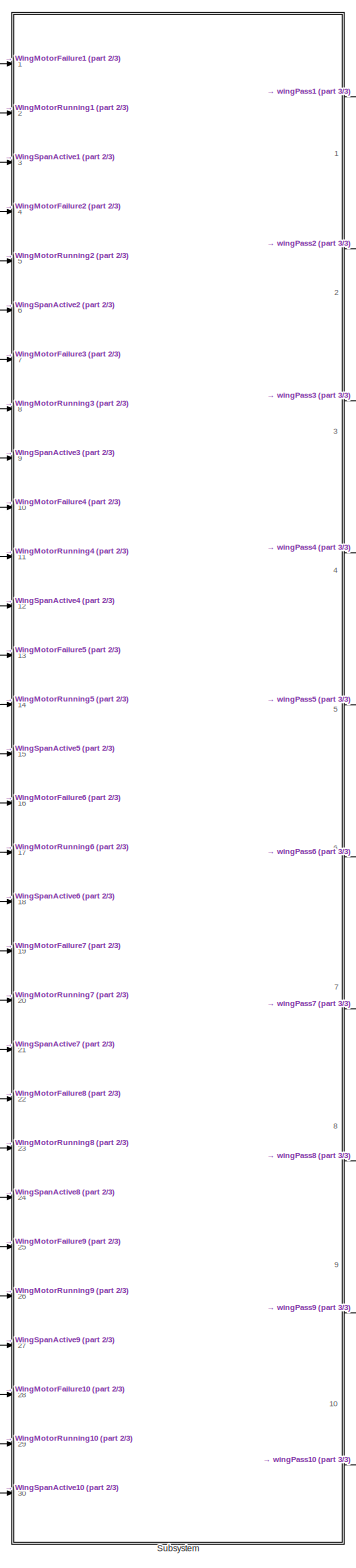
[diagram: root canvas - part 1/3, center side, full height]
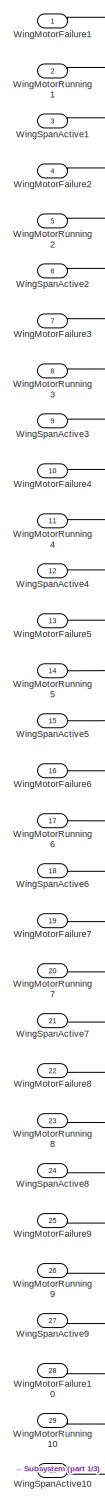
[diagram: root canvas - part 2/3, left side, full height]
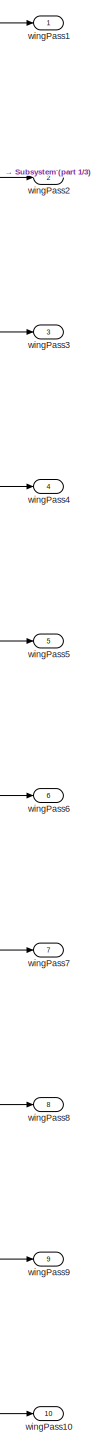
[diagram: root canvas - part 3/3, right side, full height]
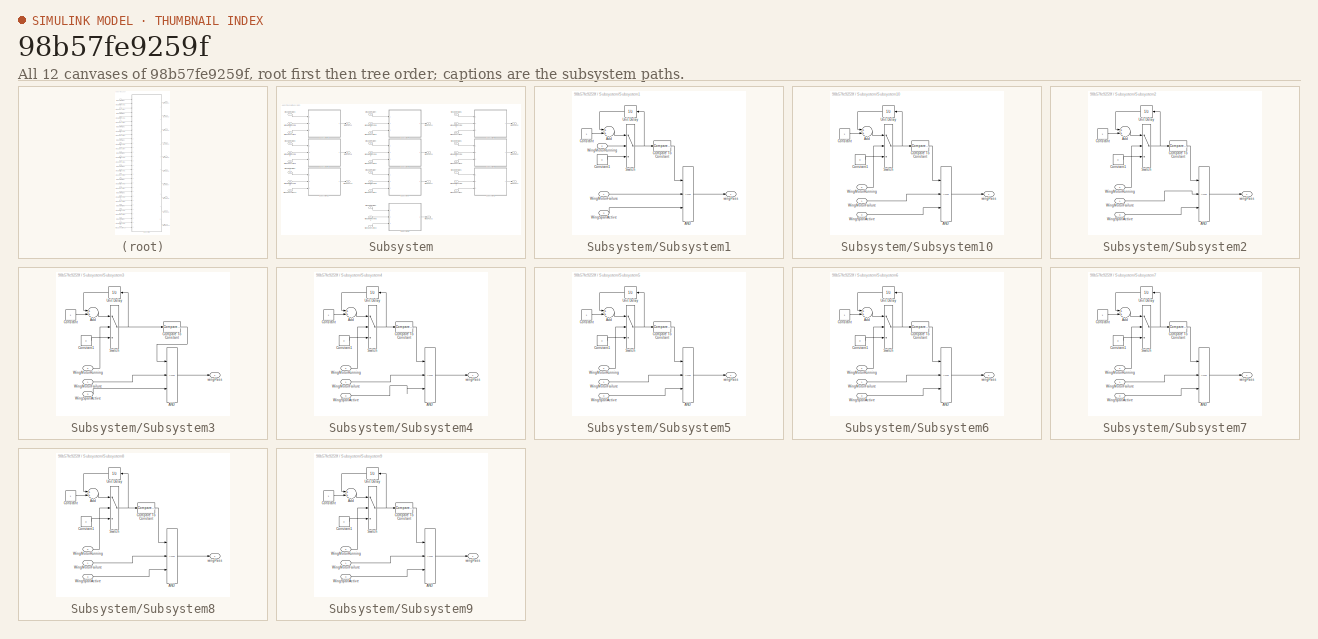
[diagram: thumbnail index - all 12 canvases of the model, root first then tree order]
MODEL slx_98b57fe9259f
KIND model
CONFIG AbsTol = auto
CONFIG EnableMultiTasking = off
CONFIG FixedStep = 0.01
CONFIG MaxStep = auto
CONFIG MinStep = auto
CONFIG RelTol = 1e-3
CONFIG SampleTimeConstraint = Unconstrained
CONFIG Solver = FixedStepAuto
CONFIG SolverName = FixedStepAuto
CONFIG StartTime = 0.0
CONFIG StopTime = 1000
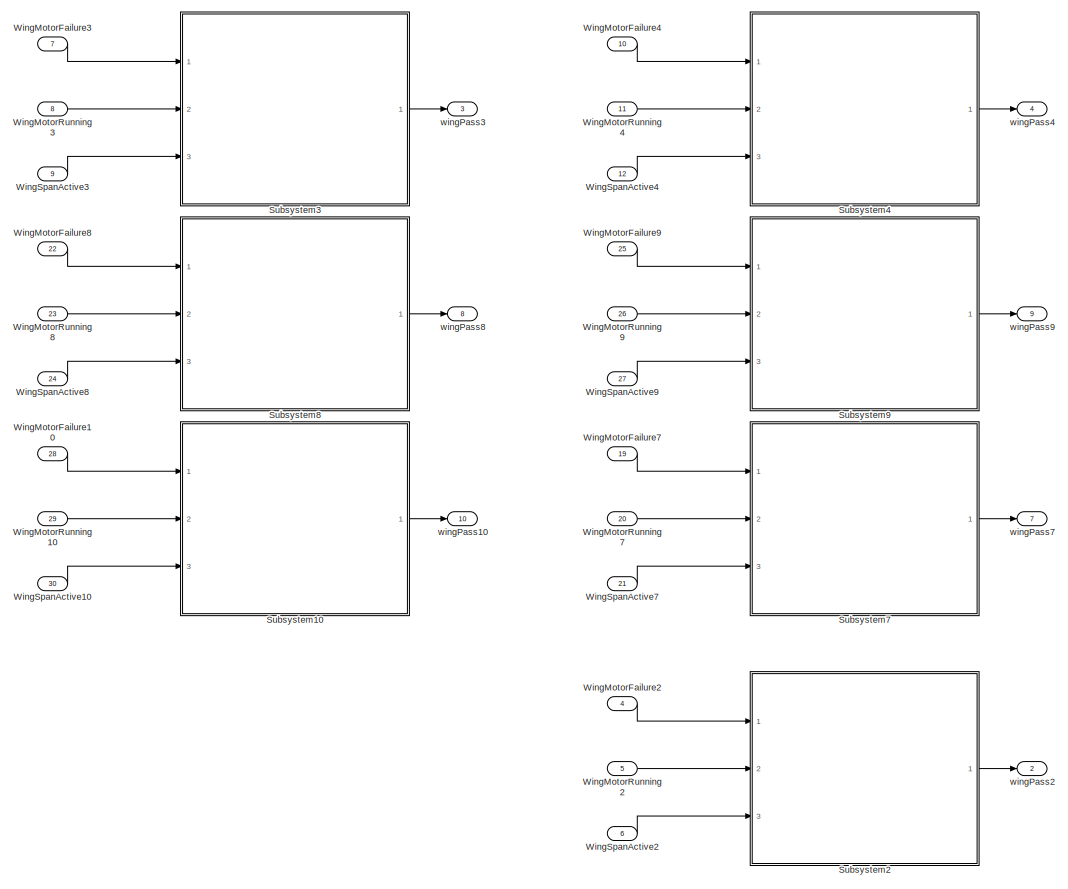
[diagram: Subsystem - part 1/2, left side, full height]
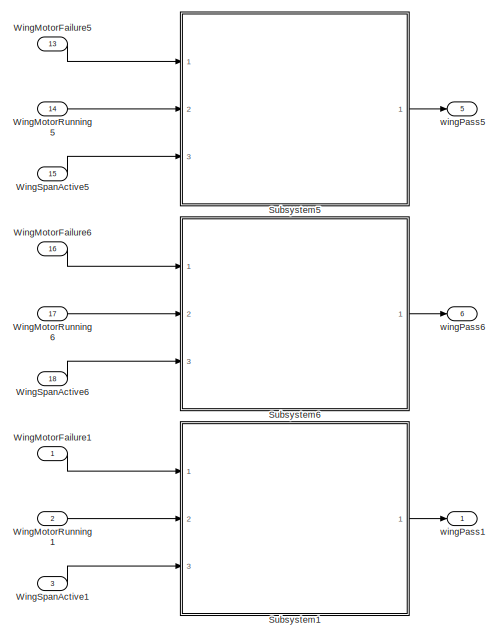
[diagram: Subsystem - part 2/2, middle right region]
BLOCK [SubSystem] Subsystem
  Ports = [30, 10]
  RequestExecContextInheritance = off
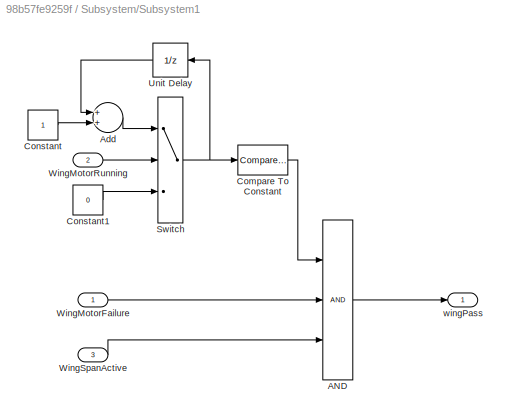
BLOCK [SubSystem] Subsystem/Subsystem1
  Ports = [3, 1]
  RequestExecContextInheritance = off
BLOCK [Logic] Subsystem/Subsystem1/AND
  AllPortsSameDT = off
  Inputs = 3
  OutDataTypeStr = boolean
  Ports = [3, 1]
BLOCK [Sum] Subsystem/Subsystem1/Add
  InputSameDT = off
  OutDataTypeStr = Inherit: Inherit via internal rule
  Ports = [2, 1]
  SaturateOnIntegerOverflow = off
BLOCK [Reference] Subsystem/Subsystem1/Compare To Constant  REF=simulink/Logic and Bit
Operations/Compare
To Constant
  Ports = [1, 1]
  SourceBlock = simulink/Logic and Bit\nOperations/Compare\nTo Constant
  SourceProductBaseCode = SL
  SourceProductName = Simulink
  SourceType = Compare To Constant
BLOCK [Constant] Subsystem/Subsystem1/Constant
BLOCK [Constant] Subsystem/Subsystem1/Constant1
  Value = 0
BLOCK [Switch] Subsystem/Subsystem1/Switch
  Criteria = u2 ~= 0
  InputSameDT = off
  SaturateOnIntegerOverflow = off
BLOCK [UnitDelay] Subsystem/Subsystem1/Unit Delay
  HasFrameUpgradeWarning = on
  SampleTime = -1
BLOCK [Inport] Subsystem/Subsystem1/WingMotorFailure
  IconDisplay = Port number
BLOCK [Inport] Subsystem/Subsystem1/WingMotorRunning
  IconDisplay = Port number
  Port = 2
BLOCK [Inport] Subsystem/Subsystem1/WingSpanActive
  IconDisplay = Port number
  Port = 3
BLOCK [Outport] Subsystem/Subsystem1/wingPass
  IconDisplay = Port number
BLOCK [SubSystem] Subsystem/Subsystem10
  Ports = [3, 1]
  RequestExecContextInheritance = off
BLOCK [Logic] Subsystem/Subsystem10/AND
  AllPortsSameDT = off
  Inputs = 3
  OutDataTypeStr = boolean
  Ports = [3, 1]
BLOCK [Sum] Subsystem/Subsystem10/Add
  InputSameDT = off
  OutDataTypeStr = Inherit: Inherit via internal rule
  Ports = [2, 1]
  SaturateOnIntegerOverflow = off
BLOCK [Reference] Subsystem/Subsystem10/Compare To Constant  REF=simulink/Logic and Bit
Operations/Compare
To Constant
  Ports = [1, 1]
  SourceBlock = simulink/Logic and Bit\nOperations/Compare\nTo Constant
  SourceProductBaseCode = SL
  SourceProductName = Simulink
  SourceType = Compare To Constant
BLOCK [Constant] Subsystem/Subsystem10/Constant
BLOCK [Constant] Subsystem/Subsystem10/Constant1
  Value = 0
BLOCK [Switch] Subsystem/Subsystem10/Switch
  Criteria = u2 ~= 0
  InputSameDT = off
  SaturateOnIntegerOverflow = off
BLOCK [UnitDelay] Subsystem/Subsystem10/Unit Delay
  HasFrameUpgradeWarning = on
  SampleTime = -1
BLOCK [Inport] Subsystem/Subsystem10/WingMotorFailure
  IconDisplay = Port number
BLOCK [Inport] Subsystem/Subsystem10/WingMotorRunning
  IconDisplay = Port number
  Port = 2
BLOCK [Inport] Subsystem/Subsystem10/WingSpanActive
  IconDisplay = Port number
  Port = 3
BLOCK [Outport] Subsystem/Subsystem10/wingPass
  IconDisplay = Port number
BLOCK [SubSystem] Subsystem/Subsystem2
  Ports = [3, 1]
  RequestExecContextInheritance = off
BLOCK [Logic] Subsystem/Subsystem2/AND
  AllPortsSameDT = off
  Inputs = 3
  OutDataTypeStr = boolean
  Ports = [3, 1]
BLOCK [Sum] Subsystem/Subsystem2/Add
  InputSameDT = off
  OutDataTypeStr = Inherit: Inherit via internal rule
  Ports = [2, 1]
  SaturateOnIntegerOverflow = off
BLOCK [Reference] Subsystem/Subsystem2/Compare To Constant  REF=simulink/Logic and Bit
Operations/Compare
To Constant
  Ports = [1, 1]
  SourceBlock = simulink/Logic and Bit\nOperations/Compare\nTo Constant
  SourceProductBaseCode = SL
  SourceProductName = Simulink
  SourceType = Compare To Constant
BLOCK [Constant] Subsystem/Subsystem2/Constant
BLOCK [Constant] Subsystem/Subsystem2/Constant1
  Value = 0
BLOCK [Switch] Subsystem/Subsystem2/Switch
  Criteria = u2 ~= 0
  InputSameDT = off
  SaturateOnIntegerOverflow = off
BLOCK [UnitDelay] Subsystem/Subsystem2/Unit Delay
  HasFrameUpgradeWarning = on
  SampleTime = -1
BLOCK [Inport] Subsystem/Subsystem2/WingMotorFailure
  IconDisplay = Port number
BLOCK [Inport] Subsystem/Subsystem2/WingMotorRunning
  IconDisplay = Port number
  Port = 2
BLOCK [Inport] Subsystem/Subsystem2/WingSpanActive
  IconDisplay = Port number
  Port = 3
BLOCK [Outport] Subsystem/Subsystem2/wingPass
  IconDisplay = Port number
BLOCK [SubSystem] Subsystem/Subsystem3
  Ports = [3, 1]
  RequestExecContextInheritance = off
BLOCK [Logic] Subsystem/Subsystem3/AND
  AllPortsSameDT = off
  Inputs = 3
  OutDataTypeStr = boolean
  Ports = [3, 1]
BLOCK [Sum] Subsystem/Subsystem3/Add
  InputSameDT = off
  OutDataTypeStr = Inherit: Inherit via internal rule
  Ports = [2, 1]
  SaturateOnIntegerOverflow = off
BLOCK [Reference] Subsystem/Subsystem3/Compare To Constant  REF=simulink/Logic and Bit
Operations/Compare
To Constant
  Ports = [1, 1]
  SourceBlock = simulink/Logic and Bit\nOperations/Compare\nTo Constant
  SourceProductBaseCode = SL
  SourceProductName = Simulink
  SourceType = Compare To Constant
BLOCK [Constant] Subsystem/Subsystem3/Constant
BLOCK [Constant] Subsystem/Subsystem3/Constant1
  Value = 0
BLOCK [Switch] Subsystem/Subsystem3/Switch
  Criteria = u2 ~= 0
  InputSameDT = off
  SaturateOnIntegerOverflow = off
BLOCK [UnitDelay] Subsystem/Subsystem3/Unit Delay
  HasFrameUpgradeWarning = on
  SampleTime = -1
BLOCK [Inport] Subsystem/Subsystem3/WingMotorFailure
  IconDisplay = Port number
BLOCK [Inport] Subsystem/Subsystem3/WingMotorRunning
  IconDisplay = Port number
  Port = 2
BLOCK [Inport] Subsystem/Subsystem3/WingSpanActive
  IconDisplay = Port number
  Port = 3
BLOCK [Outport] Subsystem/Subsystem3/wingPass
  IconDisplay = Port number
BLOCK [SubSystem] Subsystem/Subsystem4
  Ports = [3, 1]
  RequestExecContextInheritance = off
BLOCK [Logic] Subsystem/Subsystem4/AND
  AllPortsSameDT = off
  Inputs = 3
  OutDataTypeStr = boolean
  Ports = [3, 1]
BLOCK [Sum] Subsystem/Subsystem4/Add
  InputSameDT = off
  OutDataTypeStr = Inherit: Inherit via internal rule
  Ports = [2, 1]
  SaturateOnIntegerOverflow = off
BLOCK [Reference] Subsystem/Subsystem4/Compare To Constant  REF=simulink/Logic and Bit
Operations/Compare
To Constant
  Ports = [1, 1]
  SourceBlock = simulink/Logic and Bit\nOperations/Compare\nTo Constant
  SourceProductBaseCode = SL
  SourceProductName = Simulink
  SourceType = Compare To Constant
BLOCK [Constant] Subsystem/Subsystem4/Constant
BLOCK [Constant] Subsystem/Subsystem4/Constant1
  Value = 0
BLOCK [Switch] Subsystem/Subsystem4/Switch
  Criteria = u2 ~= 0
  InputSameDT = off
  SaturateOnIntegerOverflow = off
BLOCK [UnitDelay] Subsystem/Subsystem4/Unit Delay
  HasFrameUpgradeWarning = on
  SampleTime = -1
BLOCK [Inport] Subsystem/Subsystem4/WingMotorFailure
  IconDisplay = Port number
BLOCK [Inport] Subsystem/Subsystem4/WingMotorRunning
  IconDisplay = Port number
  Port = 2
BLOCK [Inport] Subsystem/Subsystem4/WingSpanActive
  IconDisplay = Port number
  Port = 3
BLOCK [Outport] Subsystem/Subsystem4/wingPass
  IconDisplay = Port number
BLOCK [SubSystem] Subsystem/Subsystem5
  Ports = [3, 1]
  RequestExecContextInheritance = off
BLOCK [Logic] Subsystem/Subsystem5/AND
  AllPortsSameDT = off
  Inputs = 3
  OutDataTypeStr = boolean
  Ports = [3, 1]
BLOCK [Sum] Subsystem/Subsystem5/Add
  InputSameDT = off
  OutDataTypeStr = Inherit: Inherit via internal rule
  Ports = [2, 1]
  SaturateOnIntegerOverflow = off
BLOCK [Reference] Subsystem/Subsystem5/Compare To Constant  REF=simulink/Logic and Bit
Operations/Compare
To Constant
  Ports = [1, 1]
  SourceBlock = simulink/Logic and Bit\nOperations/Compare\nTo Constant
  SourceProductBaseCode = SL
  SourceProductName = Simulink
  SourceType = Compare To Constant
BLOCK [Constant] Subsystem/Subsystem5/Constant
BLOCK [Constant] Subsystem/Subsystem5/Constant1
  Value = 0
BLOCK [Switch] Subsystem/Subsystem5/Switch
  Criteria = u2 ~= 0
  InputSameDT = off
  SaturateOnIntegerOverflow = off
BLOCK [UnitDelay] Subsystem/Subsystem5/Unit Delay
  HasFrameUpgradeWarning = on
  SampleTime = -1
BLOCK [Inport] Subsystem/Subsystem5/WingMotorFailure
  IconDisplay = Port number
BLOCK [Inport] Subsystem/Subsystem5/WingMotorRunning
  IconDisplay = Port number
  Port = 2
BLOCK [Inport] Subsystem/Subsystem5/WingSpanActive
  IconDisplay = Port number
  Port = 3
BLOCK [Outport] Subsystem/Subsystem5/wingPass
  IconDisplay = Port number
BLOCK [SubSystem] Subsystem/Subsystem6
  Ports = [3, 1]
  RequestExecContextInheritance = off
BLOCK [Logic] Subsystem/Subsystem6/AND
  AllPortsSameDT = off
  Inputs = 3
  OutDataTypeStr = boolean
  Ports = [3, 1]
BLOCK [Sum] Subsystem/Subsystem6/Add
  InputSameDT = off
  OutDataTypeStr = Inherit: Inherit via internal rule
  Ports = [2, 1]
  SaturateOnIntegerOverflow = off
BLOCK [Reference] Subsystem/Subsystem6/Compare To Constant  REF=simulink/Logic and Bit
Operations/Compare
To Constant
  Ports = [1, 1]
  SourceBlock = simulink/Logic and Bit\nOperations/Compare\nTo Constant
  SourceProductBaseCode = SL
  SourceProductName = Simulink
  SourceType = Compare To Constant
BLOCK [Constant] Subsystem/Subsystem6/Constant
BLOCK [Constant] Subsystem/Subsystem6/Constant1
  Value = 0
BLOCK [Switch] Subsystem/Subsystem6/Switch
  Criteria = u2 ~= 0
  InputSameDT = off
  SaturateOnIntegerOverflow = off
BLOCK [UnitDelay] Subsystem/Subsystem6/Unit Delay
  HasFrameUpgradeWarning = on
  SampleTime = -1
BLOCK [Inport] Subsystem/Subsystem6/WingMotorFailure
  IconDisplay = Port number
BLOCK [Inport] Subsystem/Subsystem6/WingMotorRunning
  IconDisplay = Port number
  Port = 2
BLOCK [Inport] Subsystem/Subsystem6/WingSpanActive
  IconDisplay = Port number
  Port = 3
BLOCK [Outport] Subsystem/Subsystem6/wingPass
  IconDisplay = Port number
BLOCK [SubSystem] Subsystem/Subsystem7
  Ports = [3, 1]
  RequestExecContextInheritance = off
BLOCK [Logic] Subsystem/Subsystem7/AND
  AllPortsSameDT = off
  Inputs = 3
  OutDataTypeStr = boolean
  Ports = [3, 1]
BLOCK [Sum] Subsystem/Subsystem7/Add
  InputSameDT = off
  OutDataTypeStr = Inherit: Inherit via internal rule
  Ports = [2, 1]
  SaturateOnIntegerOverflow = off
BLOCK [Reference] Subsystem/Subsystem7/Compare To Constant  REF=simulink/Logic and Bit
Operations/Compare
To Constant
  Ports = [1, 1]
  SourceBlock = simulink/Logic and Bit\nOperations/Compare\nTo Constant
  SourceProductBaseCode = SL
  SourceProductName = Simulink
  SourceType = Compare To Constant
BLOCK [Constant] Subsystem/Subsystem7/Constant
BLOCK [Constant] Subsystem/Subsystem7/Constant1
  Value = 0
BLOCK [Switch] Subsystem/Subsystem7/Switch
  Criteria = u2 ~= 0
  InputSameDT = off
  SaturateOnIntegerOverflow = off
BLOCK [UnitDelay] Subsystem/Subsystem7/Unit Delay
  HasFrameUpgradeWarning = on
  SampleTime = -1
BLOCK [Inport] Subsystem/Subsystem7/WingMotorFailure
  IconDisplay = Port number
BLOCK [Inport] Subsystem/Subsystem7/WingMotorRunning
  IconDisplay = Port number
  Port = 2
BLOCK [Inport] Subsystem/Subsystem7/WingSpanActive
  IconDisplay = Port number
  Port = 3
BLOCK [Outport] Subsystem/Subsystem7/wingPass
  IconDisplay = Port number
BLOCK [SubSystem] Subsystem/Subsystem8
  Ports = [3, 1]
  RequestExecContextInheritance = off
BLOCK [Logic] Subsystem/Subsystem8/AND
  AllPortsSameDT = off
  Inputs = 3
  OutDataTypeStr = boolean
  Ports = [3, 1]
BLOCK [Sum] Subsystem/Subsystem8/Add
  InputSameDT = off
  OutDataTypeStr = Inherit: Inherit via internal rule
  Ports = [2, 1]
  SaturateOnIntegerOverflow = off
BLOCK [Reference] Subsystem/Subsystem8/Compare To Constant  REF=simulink/Logic and Bit
Operations/Compare
To Constant
  Ports = [1, 1]
  SourceBlock = simulink/Logic and Bit\nOperations/Compare\nTo Constant
  SourceProductBaseCode = SL
  SourceProductName = Simulink
  SourceType = Compare To Constant
BLOCK [Constant] Subsystem/Subsystem8/Constant
BLOCK [Constant] Subsystem/Subsystem8/Constant1
  Value = 0
BLOCK [Switch] Subsystem/Subsystem8/Switch
  Criteria = u2 ~= 0
  InputSameDT = off
  SaturateOnIntegerOverflow = off
BLOCK [UnitDelay] Subsystem/Subsystem8/Unit Delay
  HasFrameUpgradeWarning = on
  SampleTime = -1
BLOCK [Inport] Subsystem/Subsystem8/WingMotorFailure
  IconDisplay = Port number
BLOCK [Inport] Subsystem/Subsystem8/WingMotorRunning
  IconDisplay = Port number
  Port = 2
BLOCK [Inport] Subsystem/Subsystem8/WingSpanActive
  IconDisplay = Port number
  Port = 3
BLOCK [Outport] Subsystem/Subsystem8/wingPass
  IconDisplay = Port number
BLOCK [SubSystem] Subsystem/Subsystem9
  Ports = [3, 1]
  RequestExecContextInheritance = off
BLOCK [Logic] Subsystem/Subsystem9/AND
  AllPortsSameDT = off
  Inputs = 3
  OutDataTypeStr = boolean
  Ports = [3, 1]
BLOCK [Sum] Subsystem/Subsystem9/Add
  InputSameDT = off
  OutDataTypeStr = Inherit: Inherit via internal rule
  Ports = [2, 1]
  SaturateOnIntegerOverflow = off
BLOCK [Reference] Subsystem/Subsystem9/Compare To Constant  REF=simulink/Logic and Bit
Operations/Compare
To Constant
  Ports = [1, 1]
  SourceBlock = simulink/Logic and Bit\nOperations/Compare\nTo Constant
  SourceProductBaseCode = SL
  SourceProductName = Simulink
  SourceType = Compare To Constant
BLOCK [Constant] Subsystem/Subsystem9/Constant
BLOCK [Constant] Subsystem/Subsystem9/Constant1
  Value = 0
BLOCK [Switch] Subsystem/Subsystem9/Switch
  Criteria = u2 ~= 0
  InputSameDT = off
  SaturateOnIntegerOverflow = off
BLOCK [UnitDelay] Subsystem/Subsystem9/Unit Delay
  HasFrameUpgradeWarning = on
  SampleTime = -1
BLOCK [Inport] Subsystem/Subsystem9/WingMotorFailure
  IconDisplay = Port number
BLOCK [Inport] Subsystem/Subsystem9/WingMotorRunning
  IconDisplay = Port number
  Port = 2
BLOCK [Inport] Subsystem/Subsystem9/WingSpanActive
  IconDisplay = Port number
  Port = 3
BLOCK [Outport] Subsystem/Subsystem9/wingPass
  IconDisplay = Port number
BLOCK [Inport] Subsystem/WingMotorFailure1
  IconDisplay = Port number
BLOCK [Inport] Subsystem/WingMotorFailure10
  IconDisplay = Port number
  Port = 28
BLOCK [Inport] Subsystem/WingMotorFailure2
  IconDisplay = Port number
  Port = 4
BLOCK [Inport] Subsystem/WingMotorFailure3
  IconDisplay = Port number
  Port = 7
BLOCK [Inport] Subsystem/WingMotorFailure4
  IconDisplay = Port number
  Port = 10
BLOCK [Inport] Subsystem/WingMotorFailure5
  IconDisplay = Port number
  Port = 13
BLOCK [Inport] Subsystem/WingMotorFailure6
  IconDisplay = Port number
  Port = 16
BLOCK [Inport] Subsystem/WingMotorFailure7
  IconDisplay = Port number
  Port = 19
BLOCK [Inport] Subsystem/WingMotorFailure8
  IconDisplay = Port number
  Port = 22
BLOCK [Inport] Subsystem/WingMotorFailure9
  IconDisplay = Port number
  Port = 25
BLOCK [Inport] Subsystem/WingMotorRunning1
  IconDisplay = Port number
  Port = 2
BLOCK [Inport] Subsystem/WingMotorRunning10
  IconDisplay = Port number
  Port = 29
BLOCK [Inport] Subsystem/WingMotorRunning2
  IconDisplay = Port number
  Port = 5
BLOCK [Inport] Subsystem/WingMotorRunning3
  IconDisplay = Port number
  Port = 8
BLOCK [Inport] Subsystem/WingMotorRunning4
  IconDisplay = Port number
  Port = 11
BLOCK [Inport] Subsystem/WingMotorRunning5
  IconDisplay = Port number
  Port = 14
BLOCK [Inport] Subsystem/WingMotorRunning6
  IconDisplay = Port number
  Port = 17
BLOCK [Inport] Subsystem/WingMotorRunning7
  IconDisplay = Port number
  Port = 20
BLOCK [Inport] Subsystem/WingMotorRunning8
  IconDisplay = Port number
  Port = 23
BLOCK [Inport] Subsystem/WingMotorRunning9
  IconDisplay = Port number
  Port = 26
BLOCK [Inport] Subsystem/WingSpanActive1
  IconDisplay = Port number
  Port = 3
BLOCK [Inport] Subsystem/WingSpanActive10
  IconDisplay = Port number
  Port = 30
BLOCK [Inport] Subsystem/WingSpanActive2
  IconDisplay = Port number
  Port = 6
BLOCK [Inport] Subsystem/WingSpanActive3
  IconDisplay = Port number
  Port = 9
BLOCK [Inport] Subsystem/WingSpanActive4
  IconDisplay = Port number
  Port = 12
BLOCK [Inport] Subsystem/WingSpanActive5
  IconDisplay = Port number
  Port = 15
BLOCK [Inport] Subsystem/WingSpanActive6
  IconDisplay = Port number
  Port = 18
BLOCK [Inport] Subsystem/WingSpanActive7
  IconDisplay = Port number
  Port = 21
BLOCK [Inport] Subsystem/WingSpanActive8
  IconDisplay = Port number
  Port = 24
BLOCK [Inport] Subsystem/WingSpanActive9
  IconDisplay = Port number
  Port = 27
BLOCK [Outport] Subsystem/wingPass1
  IconDisplay = Port number
BLOCK [Outport] Subsystem/wingPass10
  IconDisplay = Port number
  Port = 10
BLOCK [Outport] Subsystem/wingPass2
  IconDisplay = Port number
  Port = 2
BLOCK [Outport] Subsystem/wingPass3
  IconDisplay = Port number
  Port = 3
BLOCK [Outport] Subsystem/wingPass4
  IconDisplay = Port number
  Port = 4
BLOCK [Outport] Subsystem/wingPass5
  IconDisplay = Port number
  Port = 5
BLOCK [Outport] Subsystem/wingPass6
  IconDisplay = Port number
  Port = 6
BLOCK [Outport] Subsystem/wingPass7
  IconDisplay = Port number
  Port = 7
BLOCK [Outport] Subsystem/wingPass8
  IconDisplay = Port number
  Port = 8
BLOCK [Outport] Subsystem/wingPass9
  IconDisplay = Port number
  Port = 9
BLOCK [Inport] WingMotorFailure1
  IconDisplay = Port number
BLOCK [Inport] WingMotorFailure10
  IconDisplay = Port number
  Port = 28
BLOCK [Inport] WingMotorFailure2
  IconDisplay = Port number
  Port = 4
BLOCK [Inport] WingMotorFailure3
  IconDisplay = Port number
  Port = 7
BLOCK [Inport] WingMotorFailure4
  IconDisplay = Port number
  Port = 10
BLOCK [Inport] WingMotorFailure5
  IconDisplay = Port number
  Port = 13
BLOCK [Inport] WingMotorFailure6
  IconDisplay = Port number
  Port = 16
BLOCK [Inport] WingMotorFailure7
  IconDisplay = Port number
  Port = 19
BLOCK [Inport] WingMotorFailure8
  IconDisplay = Port number
  Port = 22
BLOCK [Inport] WingMotorFailure9
  IconDisplay = Port number
  Port = 25
BLOCK [Inport] WingMotorRunning1
  IconDisplay = Port number
  Port = 2
BLOCK [Inport] WingMotorRunning10
  IconDisplay = Port number
  Port = 29
BLOCK [Inport] WingMotorRunning2
  IconDisplay = Port number
  Port = 5
BLOCK [Inport] WingMotorRunning3
  IconDisplay = Port number
  Port = 8
BLOCK [Inport] WingMotorRunning4
  IconDisplay = Port number
  Port = 11
BLOCK [Inport] WingMotorRunning5
  IconDisplay = Port number
  Port = 14
BLOCK [Inport] WingMotorRunning6
  IconDisplay = Port number
  Port = 17
BLOCK [Inport] WingMotorRunning7
  IconDisplay = Port number
  Port = 20
BLOCK [Inport] WingMotorRunning8
  IconDisplay = Port number
  Port = 23
BLOCK [Inport] WingMotorRunning9
  IconDisplay = Port number
  Port = 26
BLOCK [Inport] WingSpanActive1
  IconDisplay = Port number
  Port = 3
BLOCK [Inport] WingSpanActive10
  IconDisplay = Port number
  Port = 30
BLOCK [Inport] WingSpanActive2
  IconDisplay = Port number
  Port = 6
BLOCK [Inport] WingSpanActive3
  IconDisplay = Port number
  Port = 9
BLOCK [Inport] WingSpanActive4
  IconDisplay = Port number
  Port = 12
BLOCK [Inport] WingSpanActive5
  IconDisplay = Port number
  Port = 15
BLOCK [Inport] WingSpanActive6
  IconDisplay = Port number
  Port = 18
BLOCK [Inport] WingSpanActive7
  IconDisplay = Port number
  Port = 21
BLOCK [Inport] WingSpanActive8
  IconDisplay = Port number
  Port = 24
BLOCK [Inport] WingSpanActive9
  IconDisplay = Port number
  Port = 27
BLOCK [Outport] wingPass1
  IconDisplay = Port number
BLOCK [Outport] wingPass10
  IconDisplay = Port number
  Port = 10
BLOCK [Outport] wingPass2
  IconDisplay = Port number
  Port = 2
BLOCK [Outport] wingPass3
  IconDisplay = Port number
  Port = 3
BLOCK [Outport] wingPass4
  IconDisplay = Port number
  Port = 4
BLOCK [Outport] wingPass5
  IconDisplay = Port number
  Port = 5
BLOCK [Outport] wingPass6
  IconDisplay = Port number
  Port = 6
BLOCK [Outport] wingPass7
  IconDisplay = Port number
  Port = 7
BLOCK [Outport] wingPass8
  IconDisplay = Port number
  Port = 8
BLOCK [Outport] wingPass9
  IconDisplay = Port number
  Port = 9
LINE Subsystem/Subsystem1/AND:1 -> Subsystem/Subsystem1/wingPass:1
LINE Subsystem/Subsystem1/Add:1 -> Subsystem/Subsystem1/Switch:1
LINE Subsystem/Subsystem1/Compare To Constant:1 -> Subsystem/Subsystem1/AND:1
LINE Subsystem/Subsystem1/Constant1:1 -> Subsystem/Subsystem1/Switch:3
LINE Subsystem/Subsystem1/Constant:1 -> Subsystem/Subsystem1/Add:2
NET Subsystem/Subsystem1/Switch:1 -> Subsystem/Subsystem1/Compare To Constant:1, Subsystem/Subsystem1/Unit Delay:1
LINE Subsystem/Subsystem1/Unit Delay:1 -> Subsystem/Subsystem1/Add:1
LINE Subsystem/Subsystem1/WingMotorFailure:1 -> Subsystem/Subsystem1/AND:2
LINE Subsystem/Subsystem1/WingMotorRunning:1 -> Subsystem/Subsystem1/Switch:2
LINE Subsystem/Subsystem1/WingSpanActive:1 -> Subsystem/Subsystem1/AND:3
LINE Subsystem/Subsystem10/AND:1 -> Subsystem/Subsystem10/wingPass:1
LINE Subsystem/Subsystem10/Add:1 -> Subsystem/Subsystem10/Switch:1
LINE Subsystem/Subsystem10/Compare To Constant:1 -> Subsystem/Subsystem10/AND:1
LINE Subsystem/Subsystem10/Constant1:1 -> Subsystem/Subsystem10/Switch:3
LINE Subsystem/Subsystem10/Constant:1 -> Subsystem/Subsystem10/Add:2
NET Subsystem/Subsystem10/Switch:1 -> Subsystem/Subsystem10/Compare To Constant:1, Subsystem/Subsystem10/Unit Delay:1
LINE Subsystem/Subsystem10/Unit Delay:1 -> Subsystem/Subsystem10/Add:1
LINE Subsystem/Subsystem10/WingMotorFailure:1 -> Subsystem/Subsystem10/AND:2
LINE Subsystem/Subsystem10/WingMotorRunning:1 -> Subsystem/Subsystem10/Switch:2
LINE Subsystem/Subsystem10/WingSpanActive:1 -> Subsystem/Subsystem10/AND:3
LINE Subsystem/Subsystem10:1 -> Subsystem/wingPass10:1
LINE Subsystem/Subsystem1:1 -> Subsystem/wingPass1:1
LINE Subsystem/Subsystem2/AND:1 -> Subsystem/Subsystem2/wingPass:1
LINE Subsystem/Subsystem2/Add:1 -> Subsystem/Subsystem2/Switch:1
LINE Subsystem/Subsystem2/Compare To Constant:1 -> Subsystem/Subsystem2/AND:1
LINE Subsystem/Subsystem2/Constant1:1 -> Subsystem/Subsystem2/Switch:3
LINE Subsystem/Subsystem2/Constant:1 -> Subsystem/Subsystem2/Add:2
NET Subsystem/Subsystem2/Switch:1 -> Subsystem/Subsystem2/Compare To Constant:1, Subsystem/Subsystem2/Unit Delay:1
LINE Subsystem/Subsystem2/Unit Delay:1 -> Subsystem/Subsystem2/Add:1
LINE Subsystem/Subsystem2/WingMotorFailure:1 -> Subsystem/Subsystem2/AND:2
LINE Subsystem/Subsystem2/WingMotorRunning:1 -> Subsystem/Subsystem2/Switch:2
LINE Subsystem/Subsystem2/WingSpanActive:1 -> Subsystem/Subsystem2/AND:3
LINE Subsystem/Subsystem2:1 -> Subsystem/wingPass2:1
LINE Subsystem/Subsystem3/AND:1 -> Subsystem/Subsystem3/wingPass:1
LINE Subsystem/Subsystem3/Add:1 -> Subsystem/Subsystem3/Switch:1
LINE Subsystem/Subsystem3/Compare To Constant:1 -> Subsystem/Subsystem3/AND:1
LINE Subsystem/Subsystem3/Constant1:1 -> Subsystem/Subsystem3/Switch:3
LINE Subsystem/Subsystem3/Constant:1 -> Subsystem/Subsystem3/Add:2
NET Subsystem/Subsystem3/Switch:1 -> Subsystem/Subsystem3/Compare To Constant:1, Subsystem/Subsystem3/Unit Delay:1
LINE Subsystem/Subsystem3/Unit Delay:1 -> Subsystem/Subsystem3/Add:1
LINE Subsystem/Subsystem3/WingMotorFailure:1 -> Subsystem/Subsystem3/AND:2
LINE Subsystem/Subsystem3/WingMotorRunning:1 -> Subsystem/Subsystem3/Switch:2
LINE Subsystem/Subsystem3/WingSpanActive:1 -> Subsystem/Subsystem3/AND:3
LINE Subsystem/Subsystem3:1 -> Subsystem/wingPass3:1
LINE Subsystem/Subsystem4/AND:1 -> Subsystem/Subsystem4/wingPass:1
LINE Subsystem/Subsystem4/Add:1 -> Subsystem/Subsystem4/Switch:1
LINE Subsystem/Subsystem4/Compare To Constant:1 -> Subsystem/Subsystem4/AND:1
LINE Subsystem/Subsystem4/Constant1:1 -> Subsystem/Subsystem4/Switch:3
LINE Subsystem/Subsystem4/Constant:1 -> Subsystem/Subsystem4/Add:2
NET Subsystem/Subsystem4/Switch:1 -> Subsystem/Subsystem4/Compare To Constant:1, Subsystem/Subsystem4/Unit Delay:1
LINE Subsystem/Subsystem4/Unit Delay:1 -> Subsystem/Subsystem4/Add:1
LINE Subsystem/Subsystem4/WingMotorFailure:1 -> Subsystem/Subsystem4/AND:2
LINE Subsystem/Subsystem4/WingMotorRunning:1 -> Subsystem/Subsystem4/Switch:2
LINE Subsystem/Subsystem4/WingSpanActive:1 -> Subsystem/Subsystem4/AND:3
LINE Subsystem/Subsystem4:1 -> Subsystem/wingPass4:1
LINE Subsystem/Subsystem5/AND:1 -> Subsystem/Subsystem5/wingPass:1
LINE Subsystem/Subsystem5/Add:1 -> Subsystem/Subsystem5/Switch:1
LINE Subsystem/Subsystem5/Compare To Constant:1 -> Subsystem/Subsystem5/AND:1
LINE Subsystem/Subsystem5/Constant1:1 -> Subsystem/Subsystem5/Switch:3
LINE Subsystem/Subsystem5/Constant:1 -> Subsystem/Subsystem5/Add:2
NET Subsystem/Subsystem5/Switch:1 -> Subsystem/Subsystem5/Compare To Constant:1, Subsystem/Subsystem5/Unit Delay:1
LINE Subsystem/Subsystem5/Unit Delay:1 -> Subsystem/Subsystem5/Add:1
LINE Subsystem/Subsystem5/WingMotorFailure:1 -> Subsystem/Subsystem5/AND:2
LINE Subsystem/Subsystem5/WingMotorRunning:1 -> Subsystem/Subsystem5/Switch:2
LINE Subsystem/Subsystem5/WingSpanActive:1 -> Subsystem/Subsystem5/AND:3
LINE Subsystem/Subsystem5:1 -> Subsystem/wingPass5:1
LINE Subsystem/Subsystem6/AND:1 -> Subsystem/Subsystem6/wingPass:1
LINE Subsystem/Subsystem6/Add:1 -> Subsystem/Subsystem6/Switch:1
LINE Subsystem/Subsystem6/Compare To Constant:1 -> Subsystem/Subsystem6/AND:1
LINE Subsystem/Subsystem6/Constant1:1 -> Subsystem/Subsystem6/Switch:3
LINE Subsystem/Subsystem6/Constant:1 -> Subsystem/Subsystem6/Add:2
NET Subsystem/Subsystem6/Switch:1 -> Subsystem/Subsystem6/Compare To Constant:1, Subsystem/Subsystem6/Unit Delay:1
LINE Subsystem/Subsystem6/Unit Delay:1 -> Subsystem/Subsystem6/Add:1
LINE Subsystem/Subsystem6/WingMotorFailure:1 -> Subsystem/Subsystem6/AND:2
LINE Subsystem/Subsystem6/WingMotorRunning:1 -> Subsystem/Subsystem6/Switch:2
LINE Subsystem/Subsystem6/WingSpanActive:1 -> Subsystem/Subsystem6/AND:3
LINE Subsystem/Subsystem6:1 -> Subsystem/wingPass6:1
LINE Subsystem/Subsystem7/AND:1 -> Subsystem/Subsystem7/wingPass:1
LINE Subsystem/Subsystem7/Add:1 -> Subsystem/Subsystem7/Switch:1
LINE Subsystem/Subsystem7/Compare To Constant:1 -> Subsystem/Subsystem7/AND:1
LINE Subsystem/Subsystem7/Constant1:1 -> Subsystem/Subsystem7/Switch:3
LINE Subsystem/Subsystem7/Constant:1 -> Subsystem/Subsystem7/Add:2
NET Subsystem/Subsystem7/Switch:1 -> Subsystem/Subsystem7/Compare To Constant:1, Subsystem/Subsystem7/Unit Delay:1
LINE Subsystem/Subsystem7/Unit Delay:1 -> Subsystem/Subsystem7/Add:1
LINE Subsystem/Subsystem7/WingMotorFailure:1 -> Subsystem/Subsystem7/AND:2
LINE Subsystem/Subsystem7/WingMotorRunning:1 -> Subsystem/Subsystem7/Switch:2
LINE Subsystem/Subsystem7/WingSpanActive:1 -> Subsystem/Subsystem7/AND:3
LINE Subsystem/Subsystem7:1 -> Subsystem/wingPass7:1
LINE Subsystem/Subsystem8/AND:1 -> Subsystem/Subsystem8/wingPass:1
LINE Subsystem/Subsystem8/Add:1 -> Subsystem/Subsystem8/Switch:1
LINE Subsystem/Subsystem8/Compare To Constant:1 -> Subsystem/Subsystem8/AND:1
LINE Subsystem/Subsystem8/Constant1:1 -> Subsystem/Subsystem8/Switch:3
LINE Subsystem/Subsystem8/Constant:1 -> Subsystem/Subsystem8/Add:2
NET Subsystem/Subsystem8/Switch:1 -> Subsystem/Subsystem8/Compare To Constant:1, Subsystem/Subsystem8/Unit Delay:1
LINE Subsystem/Subsystem8/Unit Delay:1 -> Subsystem/Subsystem8/Add:1
LINE Subsystem/Subsystem8/WingMotorFailure:1 -> Subsystem/Subsystem8/AND:2
LINE Subsystem/Subsystem8/WingMotorRunning:1 -> Subsystem/Subsystem8/Switch:2
LINE Subsystem/Subsystem8/WingSpanActive:1 -> Subsystem/Subsystem8/AND:3
LINE Subsystem/Subsystem8:1 -> Subsystem/wingPass8:1
LINE Subsystem/Subsystem9/AND:1 -> Subsystem/Subsystem9/wingPass:1
LINE Subsystem/Subsystem9/Add:1 -> Subsystem/Subsystem9/Switch:1
LINE Subsystem/Subsystem9/Compare To Constant:1 -> Subsystem/Subsystem9/AND:1
LINE Subsystem/Subsystem9/Constant1:1 -> Subsystem/Subsystem9/Switch:3
LINE Subsystem/Subsystem9/Constant:1 -> Subsystem/Subsystem9/Add:2
NET Subsystem/Subsystem9/Switch:1 -> Subsystem/Subsystem9/Compare To Constant:1, Subsystem/Subsystem9/Unit Delay:1
LINE Subsystem/Subsystem9/Unit Delay:1 -> Subsystem/Subsystem9/Add:1
LINE Subsystem/Subsystem9/WingMotorFailure:1 -> Subsystem/Subsystem9/AND:2
LINE Subsystem/Subsystem9/WingMotorRunning:1 -> Subsystem/Subsystem9/Switch:2
LINE Subsystem/Subsystem9/WingSpanActive:1 -> Subsystem/Subsystem9/AND:3
LINE Subsystem/Subsystem9:1 -> Subsystem/wingPass9:1
LINE Subsystem/WingMotorFailure10:1 -> Subsystem/Subsystem10:1
LINE Subsystem/WingMotorFailure1:1 -> Subsystem/Subsystem1:1
LINE Subsystem/WingMotorFailure2:1 -> Subsystem/Subsystem2:1
LINE Subsystem/WingMotorFailure3:1 -> Subsystem/Subsystem3:1
LINE Subsystem/WingMotorFailure4:1 -> Subsystem/Subsystem4:1
LINE Subsystem/WingMotorFailure5:1 -> Subsystem/Subsystem5:1
LINE Subsystem/WingMotorFailure6:1 -> Subsystem/Subsystem6:1
LINE Subsystem/WingMotorFailure7:1 -> Subsystem/Subsystem7:1
LINE Subsystem/WingMotorFailure8:1 -> Subsystem/Subsystem8:1
LINE Subsystem/WingMotorFailure9:1 -> Subsystem/Subsystem9:1
LINE Subsystem/WingMotorRunning10:1 -> Subsystem/Subsystem10:2
LINE Subsystem/WingMotorRunning1:1 -> Subsystem/Subsystem1:2
LINE Subsystem/WingMotorRunning2:1 -> Subsystem/Subsystem2:2
LINE Subsystem/WingMotorRunning3:1 -> Subsystem/Subsystem3:2
LINE Subsystem/WingMotorRunning4:1 -> Subsystem/Subsystem4:2
LINE Subsystem/WingMotorRunning5:1 -> Subsystem/Subsystem5:2
LINE Subsystem/WingMotorRunning6:1 -> Subsystem/Subsystem6:2
LINE Subsystem/WingMotorRunning7:1 -> Subsystem/Subsystem7:2
LINE Subsystem/WingMotorRunning8:1 -> Subsystem/Subsystem8:2
LINE Subsystem/WingMotorRunning9:1 -> Subsystem/Subsystem9:2
LINE Subsystem/WingSpanActive10:1 -> Subsystem/Subsystem10:3
LINE Subsystem/WingSpanActive1:1 -> Subsystem/Subsystem1:3
LINE Subsystem/WingSpanActive2:1 -> Subsystem/Subsystem2:3
LINE Subsystem/WingSpanActive3:1 -> Subsystem/Subsystem3:3
LINE Subsystem/WingSpanActive4:1 -> Subsystem/Subsystem4:3
LINE Subsystem/WingSpanActive5:1 -> Subsystem/Subsystem5:3
LINE Subsystem/WingSpanActive6:1 -> Subsystem/Subsystem6:3
LINE Subsystem/WingSpanActive7:1 -> Subsystem/Subsystem7:3
LINE Subsystem/WingSpanActive8:1 -> Subsystem/Subsystem8:3
LINE Subsystem/WingSpanActive9:1 -> Subsystem/Subsystem9:3
LINE Subsystem:1 -> wingPass1:1
LINE Subsystem:10 -> wingPass10:1
LINE Subsystem:2 -> wingPass2:1
LINE Subsystem:3 -> wingPass3:1
LINE Subsystem:4 -> wingPass4:1
LINE Subsystem:5 -> wingPass5:1
LINE Subsystem:6 -> wingPass6:1
LINE Subsystem:7 -> wingPass7:1
LINE Subsystem:8 -> wingPass8:1
LINE Subsystem:9 -> wingPass9:1
LINE WingMotorFailure10:1 -> Subsystem:28
LINE WingMotorFailure1:1 -> Subsystem:1
LINE WingMotorFailure2:1 -> Subsystem:4
LINE WingMotorFailure3:1 -> Subsystem:7
LINE WingMotorFailure4:1 -> Subsystem:10
LINE WingMotorFailure5:1 -> Subsystem:13
LINE WingMotorFailure6:1 -> Subsystem:16
LINE WingMotorFailure7:1 -> Subsystem:19
LINE WingMotorFailure8:1 -> Subsystem:22
LINE WingMotorFailure9:1 -> Subsystem:25
LINE WingMotorRunning10:1 -> Subsystem:29
LINE WingMotorRunning1:1 -> Subsystem:2
LINE WingMotorRunning2:1 -> Subsystem:5
LINE WingMotorRunning3:1 -> Subsystem:8
LINE WingMotorRunning4:1 -> Subsystem:11
LINE WingMotorRunning5:1 -> Subsystem:14
LINE WingMotorRunning6:1 -> Subsystem:17
LINE WingMotorRunning7:1 -> Subsystem:20
LINE WingMotorRunning8:1 -> Subsystem:23
LINE WingMotorRunning9:1 -> Subsystem:26
LINE WingSpanActive10:1 -> Subsystem:30
LINE WingSpanActive1:1 -> Subsystem:3
LINE WingSpanActive2:1 -> Subsystem:6
LINE WingSpanActive3:1 -> Subsystem:9
LINE WingSpanActive4:1 -> Subsystem:12
LINE WingSpanActive5:1 -> Subsystem:15
LINE WingSpanActive6:1 -> Subsystem:18
LINE WingSpanActive7:1 -> Subsystem:21
LINE WingSpanActive8:1 -> Subsystem:24
LINE WingSpanActive9:1 -> Subsystem:27
note: NET lines group one-source signal fan-out (src -> all destinations, sorted); 1:1 wires keep LINE
